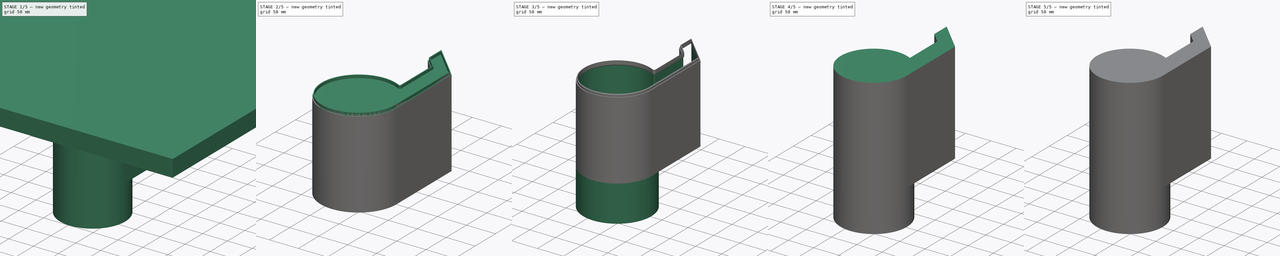
[diagram: build sequence overview — one tinted view per stage of 5, left to right]
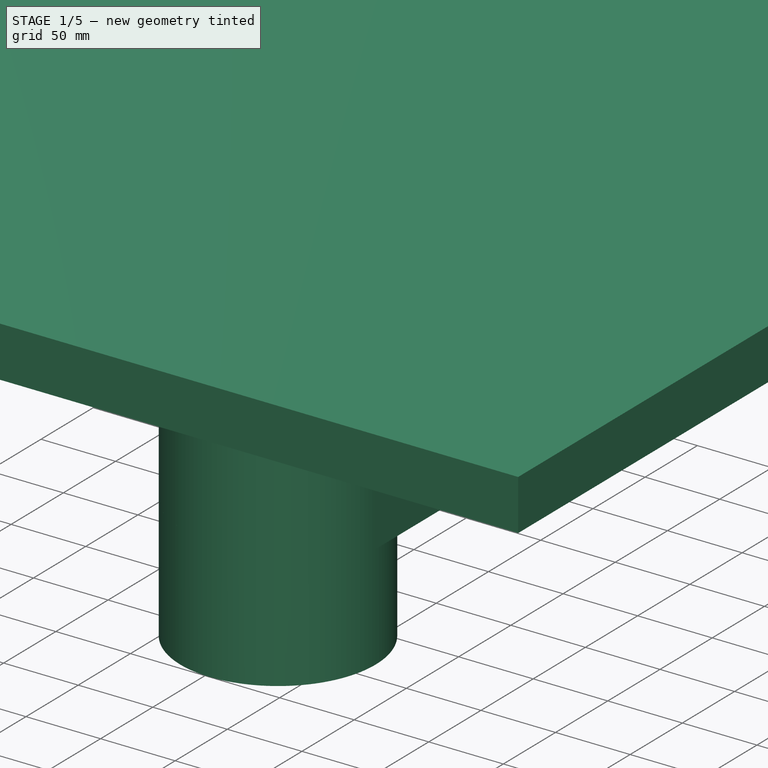
[diagram: stage 1 of 5 — iso view after this stage's code; geometry added in this stage tinted green]
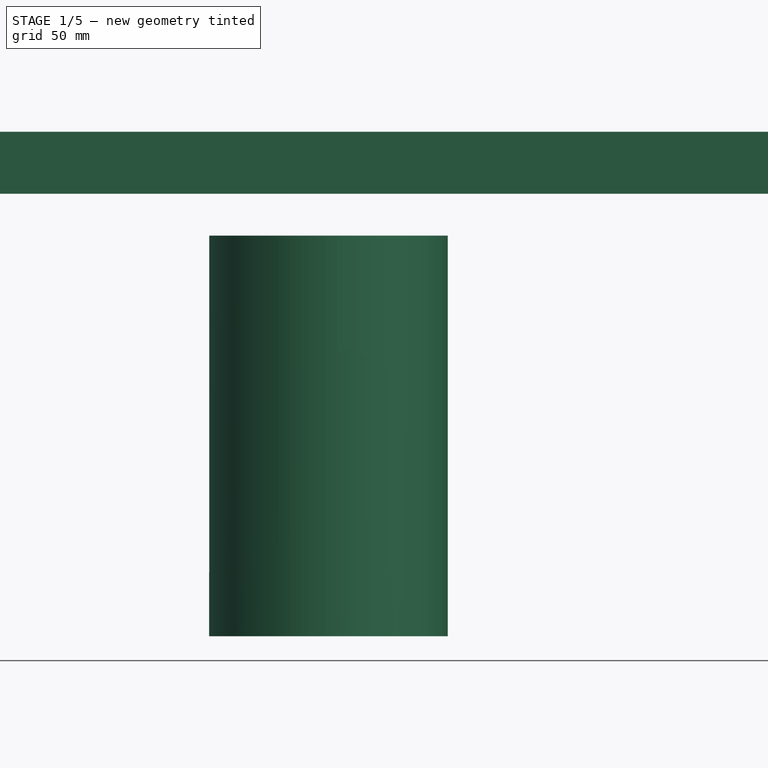
[diagram: stage 1 of 5 — front view after this stage's code; geometry added in this stage tinted green]
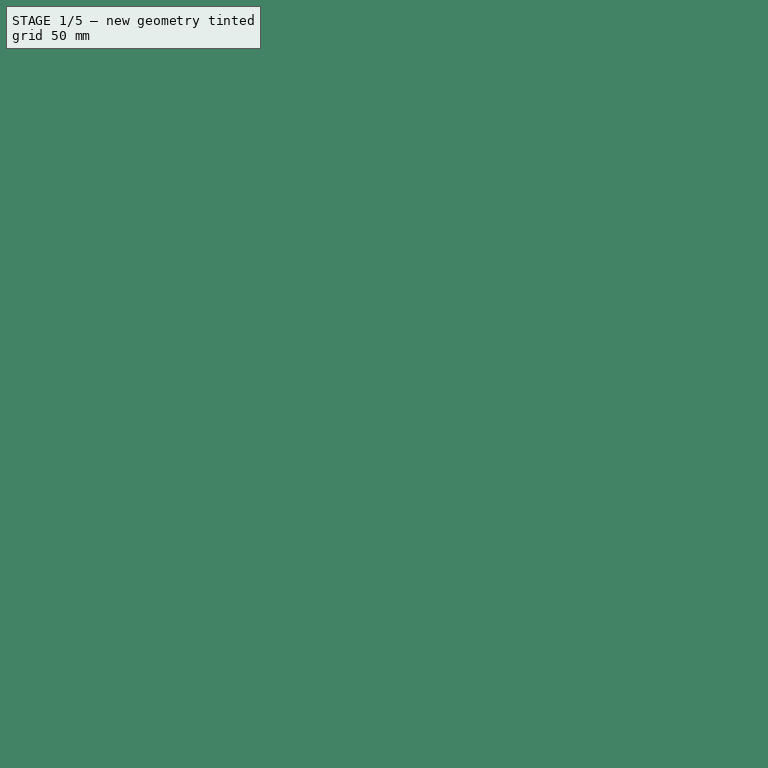
[diagram: stage 1 of 5 — top view after this stage's code; geometry added in this stage tinted green]
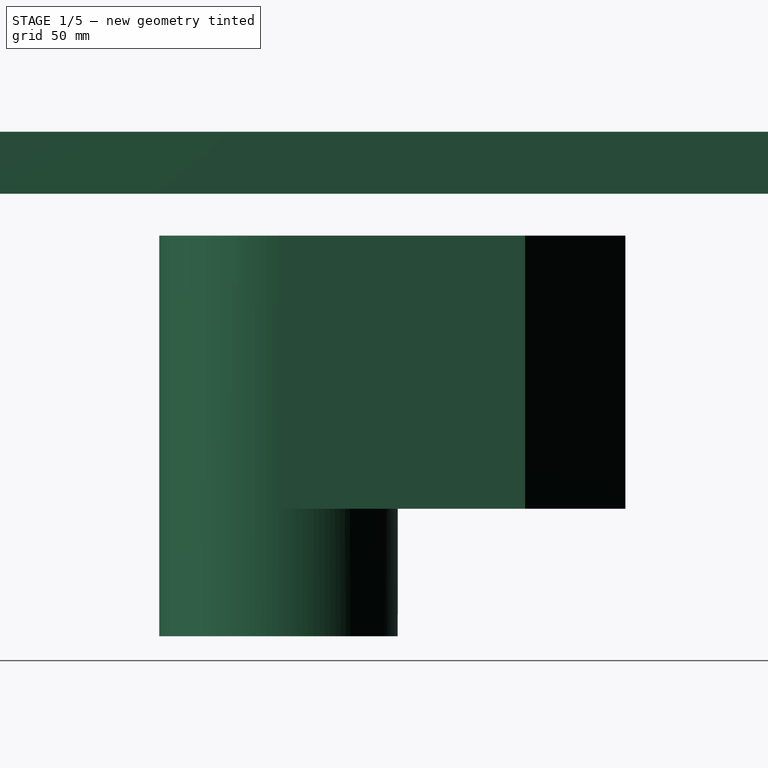
[diagram: stage 1 of 5 — right view after this stage's code; geometry added in this stage tinted green]
FCSTD DOCUMENT  (FreeCAD 1.1R1.1.0)
Label: SimpleWIndowThrough
License: All rights reserved
LicenseURL: http://en.wikipedia.org/wiki/All_rights_reserved
objects: Sketcher::SketchObject×15, PartDesign::Pad×9, App::Point×7, PartDesign::Body×6, PartDesign::Pocket×6, PartDesign::Thickness×5, Part::MultiFuse×2, Part::Cut×2, Part::Fillet×1, PartDesign::Chamfer×1, Part::Box×1, Part::Chamfer×1
note: 106 computed .brp shape members not serialized (recipe doc carries the construction recipe); baked Part::Feature solids carry a one-line shape summary decoded from their .brp

FEATURE [PartDesign::Body] Body003  label="PartLower"
  AllowCompound = false
  Group = -> [Sketch008,Pad004,Thickness002,Sketch009,Pad005,Sketch010,Pocket003,Sketch011,Pocket004]
  Origin = -> Origin008
  Tip = -> Pocket004
FEATURE [App::Point] Origin011  label="Origin013"
  Role = Origin
FEATURE [Sketcher::SketchObject] Sketch012
  ArcFitTolerance = 1e-06
  AttachmentSupport = -> [Origin010]
  ExternalTypes = [0]
  FullyConstrained = false
  MakeInternals = false
  MapMode = 5
  _ExternalGeoVersion = 1
  sketch-geometry (8):
    g0: LineSegment StartX=-1.7444e-12 StartY=-3.304e-12 StartZ=0 EndX=0 EndY=77.5345 EndZ=0
    g1: LineSegment StartX=0 StartY=77.5345 StartZ=0 EndX=-20 EndY=97.5345 EndZ=0
    g2: LineSegment StartX=-20 StartY=97.5345 StartZ=0 EndX=-20 EndY=132.534 EndZ=0
    g3: LineSegment StartX=-20 StartY=132.534 StartZ=0 EndX=35 EndY=77.5345 EndZ=0
    g4: LineSegment StartX=35 StartY=77.5345 StartZ=0 EndX=35 EndY=0 EndZ=0
    g5: ArcOfCircle CenterX=-30.5 CenterY=-57.9655 CenterZ=0 NormalX=0 NormalY=0 NormalZ=1 AngleXU=0 Radius=65.5 StartAngle=1.08643 EndAngle=6.28319
    g6: LineSegment StartX=35 StartY=0 StartZ=0 EndX=35 EndY=-57.9655 EndZ=0
    g7: LineSegment [constr] StartX=-138.105 StartY=7.53449 StartZ=0 EndX=169.661 EndY=7.53449 EndZ=0
  constraints (22):
    c: Coincident(g-1,g0)
    c: PointOnObject(g0,g-2)
    c: Coincident(g0,g1)
    c: Coincident(g1,g2)
    c: Vertical(g2)
    c: Coincident(g2,g3)
    c: Coincident(g3,g4)
    c: PointOnObject(g4,g-1)
    c: Vertical(g4)
    c: Coincident(g5,g0)
    c: Coincident(g6,g4)
    c: Vertical(g6)
    c: DistanceX(g0,g4) = 35
    c: Diameter(g5) = 131
    c: Parallel(g3,g1)
    c: Angle(g1,g0) = 2.35619
    c: Tangent(g6,g5) = 1.5708
    c: Horizontal(g7)
    c: Tangent(g7,g5)
    c: DistanceY(g7,g0) = 70
    c: DistanceX(g1,g0) = 20
    c: DistanceY(g2,g2) = 35
FEATURE [PartDesign::Pad] Pad006
  Direction = (0,0,1)
  Length = 13
  Length2 = 10
  Profile = -> Sketch012
  ReferenceAxis = -> Sketch012 [N_Axis]
  SideType = 0
  Suppressed = false
  Type = 0
  Type2 = 0
FEATURE [PartDesign::Body] Body004
  AllowCompound = false
  Group = -> [Sketch012,Pad006,Thickness003,Chamfer]
  Origin = -> Origin010
  Placement = pos=(0,0,164) rot=(0,0,1;0rad)
  Tip = -> Chamfer
FEATURE [Part::Box] Box  label="Cube"
  AttacherType = Attacher::AttachEngine3D
  Height = 34
  Length = 600
  Placement = pos=(-300,-300,173) rot=(0,0,1;0rad)
  Width = 600
FEATURE [App::Point] Origin013  label="Origin015"
  Role = Origin
FEATURE [Sketcher::SketchObject] Sketch013
  ArcFitTolerance = 1e-06
  AttachmentSupport = -> [Origin012]
  ExternalTypes = [0]
  FullyConstrained = false
  MakeInternals = false
  MapMode = 5
  _ExternalGeoVersion = 1
  sketch-geometry (8):
    g0: LineSegment StartX=7.1e-15 StartY=0 StartZ=0 EndX=0 EndY=77.5345 EndZ=0
    g1: LineSegment StartX=0 StartY=77.5345 StartZ=0 EndX=-20 EndY=97.5345 EndZ=0
    g2: LineSegment StartX=-20 StartY=97.5345 StartZ=0 EndX=-20 EndY=132.534 EndZ=0
    g3: LineSegment StartX=-20 StartY=132.534 StartZ=0 EndX=35 EndY=77.5345 EndZ=0
    g4: LineSegment StartX=35 StartY=77.5345 StartZ=0 EndX=35 EndY=0 EndZ=0
    g5: ArcOfCircle CenterX=-30.5 CenterY=-57.9655 CenterZ=0 NormalX=0 NormalY=0 NormalZ=1 AngleXU=0 Radius=65.5 StartAngle=1.08643 EndAngle=6.28319
    g6: LineSegment StartX=35 StartY=0 StartZ=0 EndX=35 EndY=-57.9655 EndZ=0
    g7: LineSegment [constr] StartX=-138.105 StartY=7.53449 StartZ=0 EndX=169.661 EndY=7.53449 EndZ=0
  constraints (22):
    c: Coincident(g-1,g0)
    c: PointOnObject(g0,g-2)
    c: Coincident(g0,g1)
    c: Coincident(g1,g2)
    c: Vertical(g2)
    c: Coincident(g2,g3)
    c: Coincident(g3,g4)
    c: PointOnObject(g4,g-1)
    c: Vertical(g4)
    c: Coincident(g5,g0)
    c: Coincident(g6,g4)
    c: Vertical(g6)
    c: DistanceX(g0,g4) = 35
    c: Diameter(g5) = 131
    c: Parallel(g3,g1)
    c: Angle(g1,g0) = 2.35619
    c: Tangent(g6,g5) = 1.5708
    c: Horizontal(g7)
    c: Tangent(g7,g5)
    c: DistanceY(g7,g0) = 70
    c: DistanceX(g1,g0) = 20
    c: DistanceY(g2,g2) = 35
FEATURE [PartDesign::Pad] Pad007
  Direction = (0,0,1)
  Length = 150
  Length2 = 10
  Profile = -> Sketch013
  ReferenceAxis = -> Sketch013 [N_Axis]
  SideType = 0
  Suppressed = false
  Type = 0
  Type2 = 0
FEATURE [PartDesign::Thickness] Thickness004
  Base = -> Pad007 [Face9]
  BaseFeature = -> Pad007
  Intersection = false
  Join = 0
  Mode = 0
  Reversed = true
  SupportTransform = false
  Suppressed = false
  Value = 1.5
FEATURE [Sketcher::SketchObject] Sketch014
  ArcFitTolerance = 1e-06
  AttachmentSupport = -> [Thickness004]
  ExternalGeometry = -> [Thickness004]
  ExternalTypes = [0]
  FullyConstrained = true
  MakeInternals = false
  MapMode = 5
  Placement = pos=(0,0,0) rot=(1,0,0;3.14159rad)
  _ExternalGeoVersion = 1
  sketch-geometry (1):
    g0: Circle CenterX=-30.5 CenterY=57.9655 CenterZ=0 NormalX=0 NormalY=0 NormalZ=1 AngleXU=0 Radius=65.5
  constraints (2):
    c: Coincident(g0,g-3)
    c: Diameter(g0) = 131
FEATURE [PartDesign::Pad] Pad008
  BaseFeature = -> Thickness004
  Direction = (0,0,-1)
  Length = 70
  Length2 = 10
  Profile = -> Sketch014
  ReferenceAxis = -> Sketch014 [N_Axis]
  SideType = 0
  Suppressed = false
  Type = 0
  Type2 = 0
FEATURE [Sketcher::SketchObject] Sketch015
  ArcFitTolerance = 1e-06
  AttachmentSupport = -> [Pad008]
  ExternalGeometry = -> [Pad008]
  ExternalTypes = [0]
  FullyConstrained = true
  MakeInternals = false
  MapMode = 5
  Placement = pos=(0,0,-70) rot=(1,0,0;3.14159rad)
  _ExternalGeoVersion = 1
  sketch-geometry (1):
    g0: Circle CenterX=-30.5 CenterY=57.9655 CenterZ=0 NormalX=0 NormalY=0 NormalZ=1 AngleXU=0 Radius=62.5
  constraints (2):
    c: Coincident(g0,g-3)
    c: Diameter(g0) = 125
FEATURE [PartDesign::Pocket] Pocket005
  BaseFeature = -> Pad008
  Direction = (0,0,1)
  Length = 104
  Length2 = 5
  Profile = -> Sketch015
  ReferenceAxis = -> Sketch015 [N_Axis]
  SideType = 0
  Suppressed = false
  Type = 0
  Type2 = 0
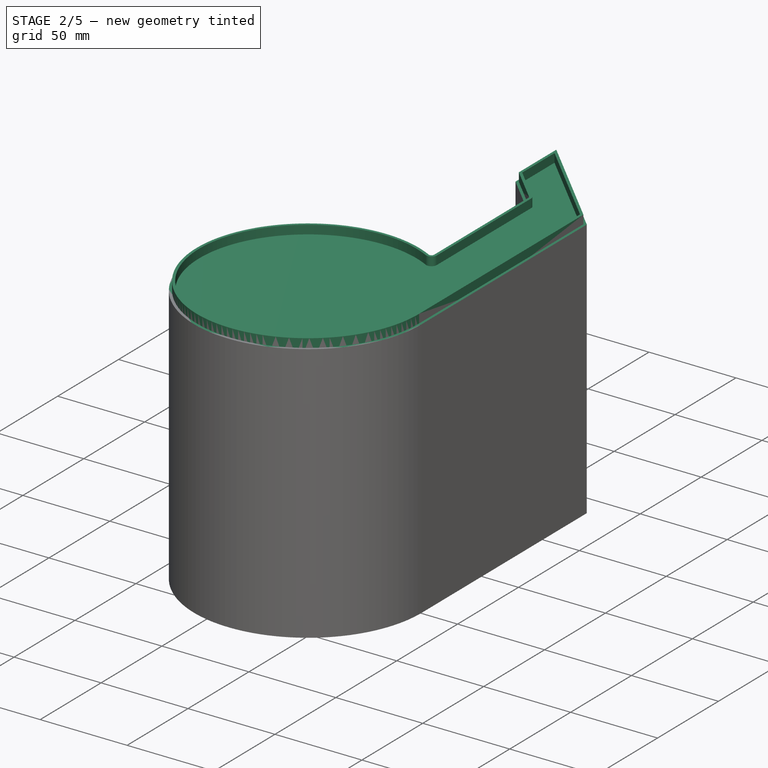
[diagram: stage 2 of 5 — iso view after this stage's code; geometry added in this stage tinted green]
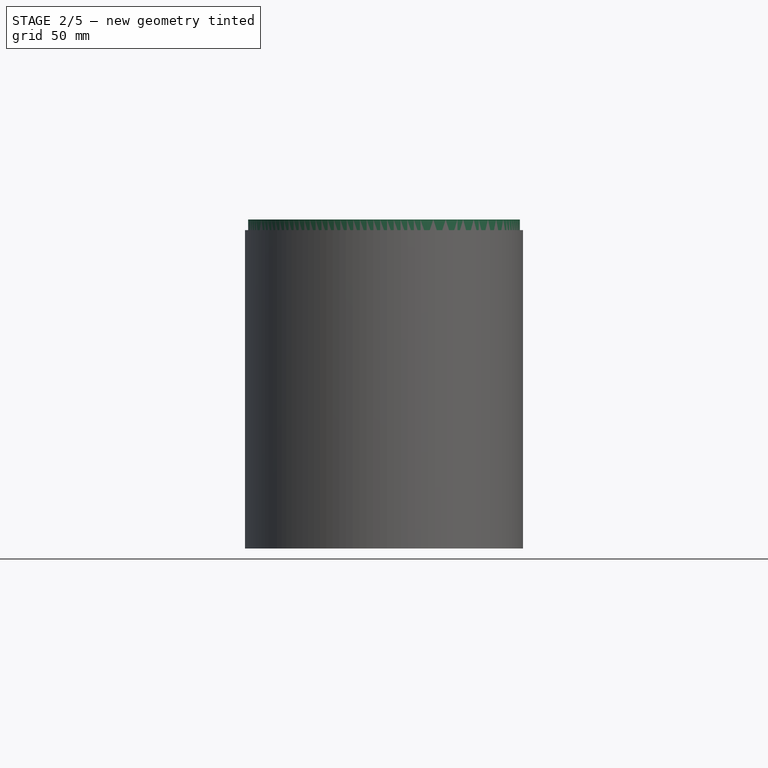
[diagram: stage 2 of 5 — front view after this stage's code; geometry added in this stage tinted green]
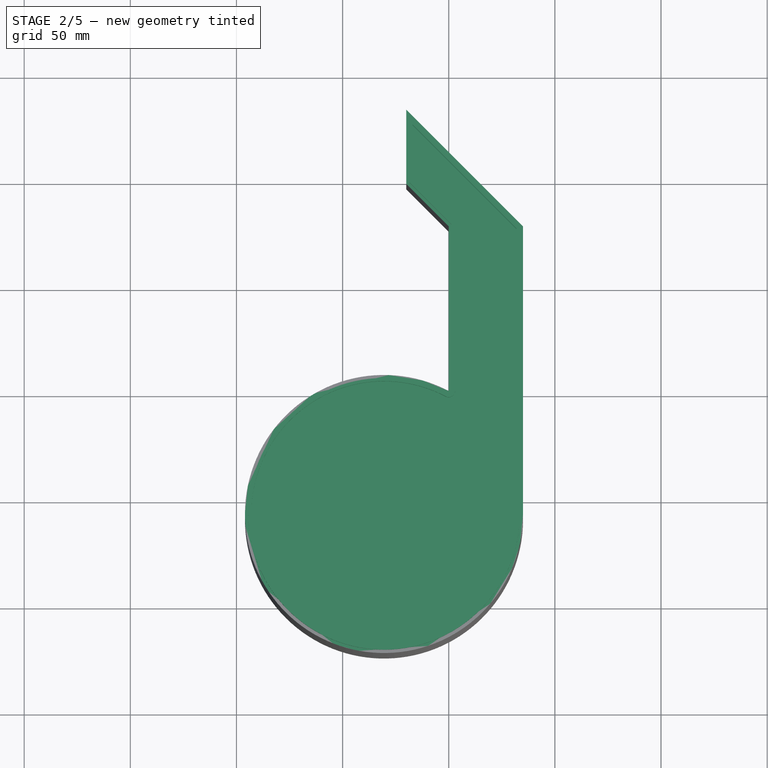
[diagram: stage 2 of 5 — top view after this stage's code; geometry added in this stage tinted green]
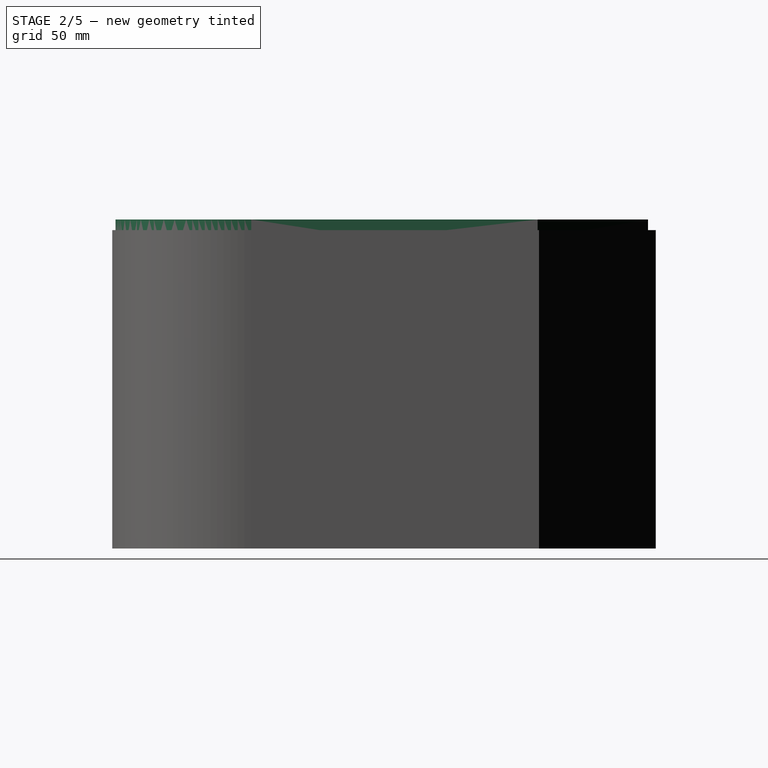
[diagram: stage 2 of 5 — right view after this stage's code; geometry added in this stage tinted green]
FEATURE [PartDesign::Body] Body002  label="PartUpper"
  AllowCompound = false
  Group = -> [Sketch006,Pad003,Thickness001,Sketch007,Pocket002]
  Origin = -> Origin006
  Placement = pos=(0,0,164) rot=(0,0,1;0rad)
  Tip = -> Pocket002
FEATURE [App::Point] Origin009  label="Origin011"
  Role = Origin
FEATURE [Sketcher::SketchObject] Sketch008
  ArcFitTolerance = 1e-06
  AttachmentSupport = -> [Origin008]
  ExternalTypes = [0]
  FullyConstrained = false
  MakeInternals = false
  MapMode = 5
  _ExternalGeoVersion = 1
  sketch-geometry (8):
    g0: LineSegment StartX=7.1e-15 StartY=0 StartZ=0 EndX=0 EndY=77.5345 EndZ=0
    g1: LineSegment StartX=0 StartY=77.5345 StartZ=0 EndX=-20 EndY=97.5345 EndZ=0
    g2: LineSegment StartX=-20 StartY=97.5345 StartZ=0 EndX=-20 EndY=132.534 EndZ=0
    g3: LineSegment StartX=-20 StartY=132.534 StartZ=0 EndX=35 EndY=77.5345 EndZ=0
    g4: LineSegment StartX=35 StartY=77.5345 StartZ=0 EndX=35 EndY=0 EndZ=0
    g5: ArcOfCircle CenterX=-30.5 CenterY=-57.9655 CenterZ=0 NormalX=0 NormalY=0 NormalZ=1 AngleXU=0 Radius=65.5 StartAngle=1.08643 EndAngle=6.28319
    g6: LineSegment StartX=35 StartY=0 StartZ=0 EndX=35 EndY=-57.9655 EndZ=0
    g7: LineSegment [constr] StartX=-138.105 StartY=7.53449 StartZ=0 EndX=169.661 EndY=7.53449 EndZ=0
  constraints (22):
    c: Coincident(g-1,g0)
    c: PointOnObject(g0,g-2)
    c: Coincident(g0,g1)
    c: Coincident(g1,g2)
    c: Vertical(g2)
    c: Coincident(g2,g3)
    c: Coincident(g3,g4)
    c: PointOnObject(g4,g-1)
    c: Vertical(g4)
    c: Coincident(g5,g0)
    c: Coincident(g6,g4)
    c: Vertical(g6)
    c: DistanceX(g0,g4) = 35
    c: Diameter(g5) = 131
    c: Parallel(g3,g1)
    c: Angle(g1,g0) = 2.35619
    c: Tangent(g6,g5) = 1.5708
    c: Horizontal(g7)
    c: Tangent(g7,g5)
    c: DistanceY(g7,g0) = 70
    c: DistanceX(g1,g0) = 20
    c: DistanceY(g2,g2) = 35
FEATURE [PartDesign::Pad] Pad004
  Direction = (0,0,1)
  Length = 150
  Length2 = 10
  Profile = -> Sketch008
  ReferenceAxis = -> Sketch008 [N_Axis]
  SideType = 0
  Suppressed = false
  Type = 0
  Type2 = 0
FEATURE [PartDesign::Thickness] Thickness003
  Base = -> Pad006 [Face8]
  BaseFeature = -> Pad006
  Intersection = false
  Join = 0
  Mode = 0
  Reversed = true
  SupportTransform = false
  Suppressed = false
  Value = 3
FEATURE [PartDesign::Chamfer] Chamfer
  Angle = 45
  Base = -> Thickness003 [Edge22,Edge30,Edge29,Edge28,Edge27,Edge26,Vertex19,Edge25,Edge24,Edge23]
  BaseFeature = -> Thickness003
  ChamferType = 0
  FlipDirection = false
  Size = 1.5
  Size2 = 1
  SupportTransform = false
  Suppressed = false
  UseAllEdges = false
FEATURE [Part::Cut] Cut
  Base = -> Body004
  Placement = pos=(0,0,-18) rot=(0,0,1;0rad)
  Tool = -> Box
FEATURE [PartDesign::Body] Body005  label="PartLower001"
  AllowCompound = false
  Group = -> [Sketch013,Pad007,Thickness004,Sketch014,Pad008,Sketch015,Pocket005]
  Origin = -> Origin012
  Placement = pos=(0,0,6) rot=(0,0,1;0rad)
  Tip = -> Pocket005
FEATURE [Part::Cut] Cut001
  Base = -> Cut
  Tool = -> Body005
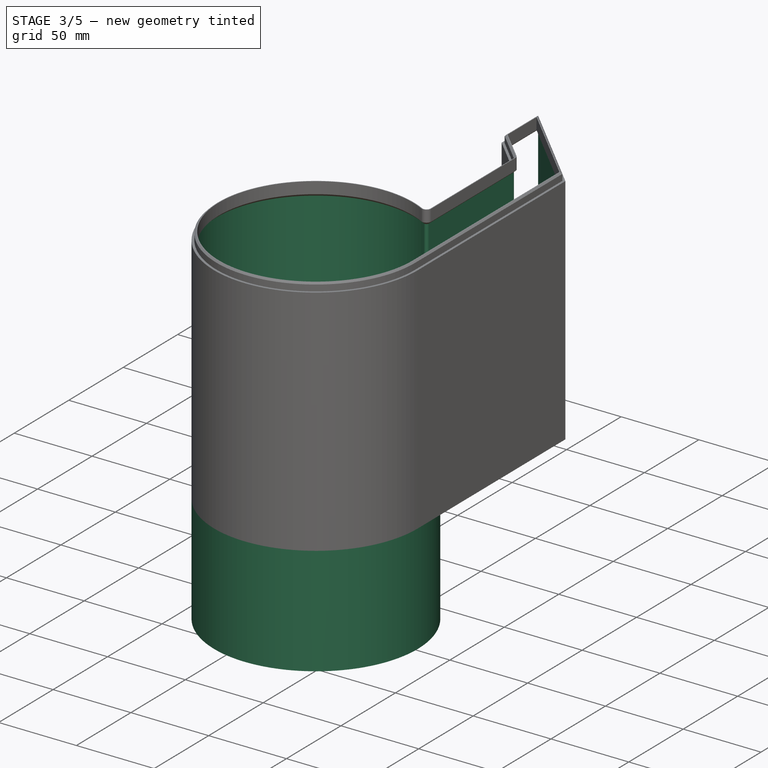
[diagram: stage 3 of 5 — iso view after this stage's code; geometry added in this stage tinted green]
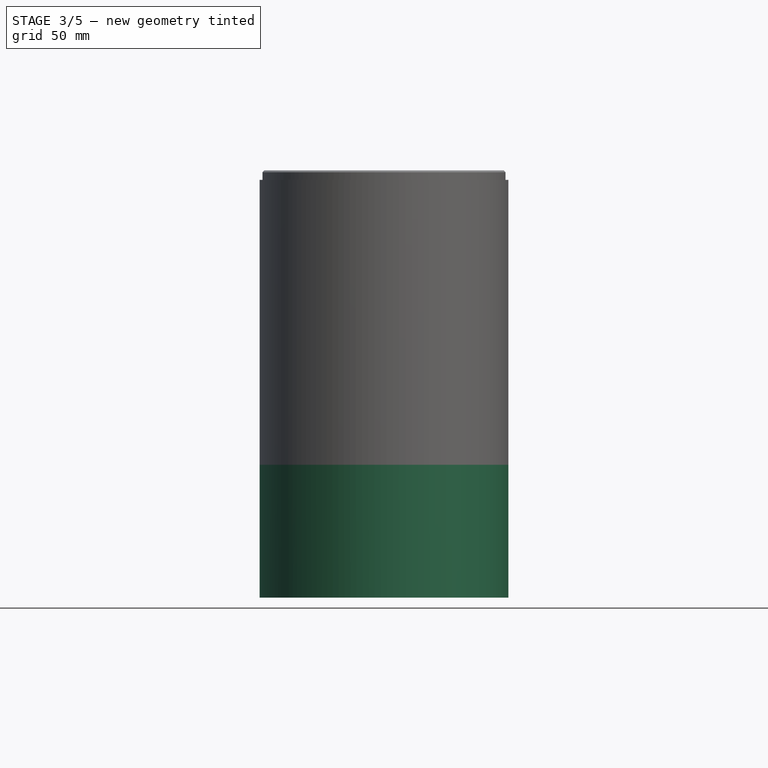
[diagram: stage 3 of 5 — front view after this stage's code; geometry added in this stage tinted green]
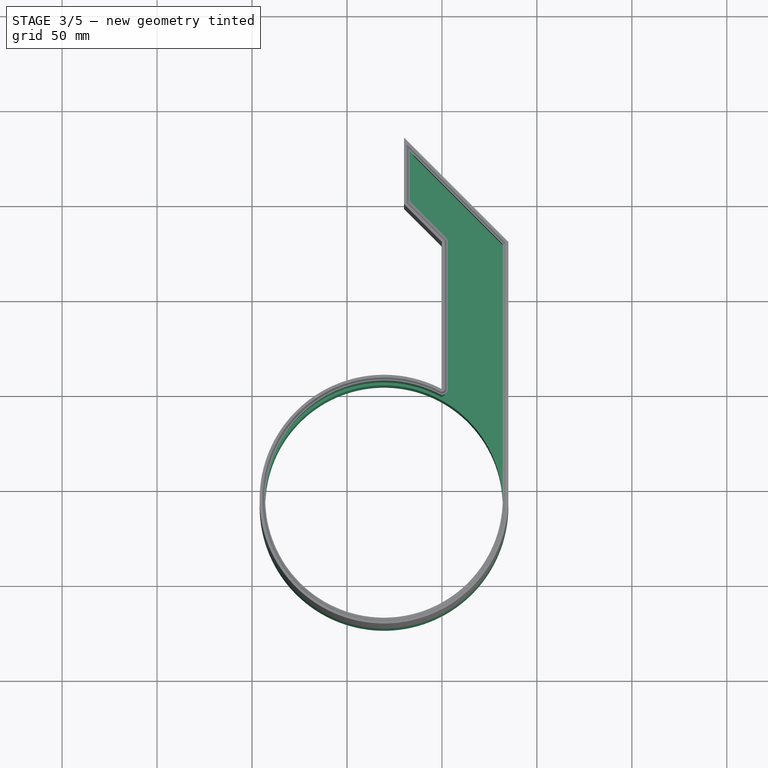
[diagram: stage 3 of 5 — top view after this stage's code; geometry added in this stage tinted green]
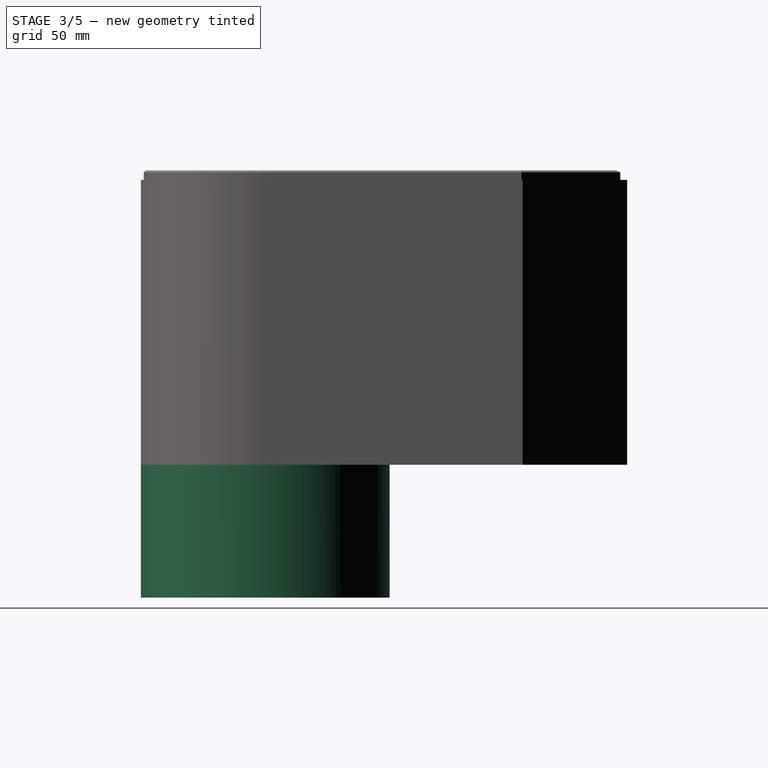
[diagram: stage 3 of 5 — right view after this stage's code; geometry added in this stage tinted green]
FEATURE [PartDesign::Thickness] Thickness002
  Base = -> Pad004 [Face9]
  BaseFeature = -> Pad004
  Intersection = false
  Join = 0
  Mode = 0
  Reversed = true
  SupportTransform = false
  Suppressed = false
  Value = 1.5
FEATURE [Sketcher::SketchObject] Sketch009
  ArcFitTolerance = 1e-06
  AttachmentSupport = -> [Thickness002]
  ExternalGeometry = -> [Thickness002]
  ExternalTypes = [0]
  FullyConstrained = true
  MakeInternals = false
  MapMode = 5
  Placement = pos=(0,0,0) rot=(1,0,0;3.14159rad)
  _ExternalGeoVersion = 1
  sketch-geometry (1):
    g0: Circle CenterX=-30.5 CenterY=57.9655 CenterZ=0 NormalX=0 NormalY=0 NormalZ=1 AngleXU=0 Radius=65.5
  constraints (2):
    c: Coincident(g0,g-3)
    c: Diameter(g0) = 131
FEATURE [PartDesign::Pad] Pad005
  BaseFeature = -> Thickness002
  Direction = (0,0,-1)
  Length = 70
  Length2 = 10
  Profile = -> Sketch009
  ReferenceAxis = -> Sketch009 [N_Axis]
  SideType = 0
  Suppressed = false
  Type = 0
  Type2 = 0
FEATURE [Sketcher::SketchObject] Sketch010
  ArcFitTolerance = 1e-06
  AttachmentSupport = -> [Pad005]
  ExternalGeometry = -> [Pad005]
  ExternalTypes = [0]
  FullyConstrained = true
  MakeInternals = false
  MapMode = 5
  Placement = pos=(0,0,-70) rot=(1,0,0;3.14159rad)
  _ExternalGeoVersion = 1
  sketch-geometry (1):
    g0: Circle CenterX=-30.5 CenterY=57.9655 CenterZ=0 NormalX=0 NormalY=0 NormalZ=1 AngleXU=0 Radius=62.5
  constraints (2):
    c: Coincident(g0,g-3)
    c: Diameter(g0) = 125
FEATURE [PartDesign::Pocket] Pocket003
  BaseFeature = -> Pad005
  Direction = (0,0,1)
  Length = 104
  Length2 = 5
  Profile = -> Sketch010
  ReferenceAxis = -> Sketch010 [N_Axis]
  SideType = 0
  Suppressed = false
  Type = 0
  Type2 = 0
FEATURE [Sketcher::SketchObject] Sketch011
  ArcFitTolerance = 1e-06
  AttachmentSupport = -> [Pocket003]
  ExternalGeometry = -> [Pocket003]
  ExternalTypes = [0]
  FullyConstrained = true
  MakeInternals = false
  MapMode = 5
  Placement = pos=(-20,0,0) rot=(0.57735,-0.57735,-0.57735;2.0944rad)
  _ExternalGeoVersion = 1
  sketch-geometry (4):
    g0: LineSegment StartX=-131.034 StartY=1.5 StartZ=0 EndX=-99.0345 EndY=1.5 EndZ=0
    g1: LineSegment StartX=-99.0345 StartY=1.5 StartZ=0 EndX=-99.0345 EndY=148.5 EndZ=0
    g2: LineSegment StartX=-99.0345 StartY=148.5 StartZ=0 EndX=-131.034 EndY=148.5 EndZ=0
    g3: LineSegment StartX=-131.034 StartY=148.5 StartZ=0 EndX=-131.034 EndY=1.5 EndZ=0
  constraints (12):
    c: Coincident(g0,g1)
    c: Coincident(g1,g2)
    c: Coincident(g2,g3)
    c: Coincident(g3,g0)
    c: Horizontal(g0)
    c: Horizontal(g2)
    c: Vertical(g1)
    c: Vertical(g3)
    c: DistanceX(g-3,g2) = 1.5
    c: DistanceY(g2,g-3) = 1.5
    c: DistanceY(g-3,g0) = 1.5
    c: DistanceX(g0,g0) = 32
FEATURE [PartDesign::Pocket] Pocket004
  BaseFeature = -> Pocket003
  Direction = (1,-1,0)
  Length = 5
  Length2 = 5
  Profile = -> Sketch011
  ReferenceAxis = -> Sketch011 [N_Axis]
  SideType = 0
  Suppressed = false
  Type = 0
  Type2 = 0
  UseCustomVector = true
FEATURE [Part::MultiFuse] Fusion001
  Shapes = -> [Body003,Cut001]
FEATURE [Part::Chamfer] Chamfer001  label="PartLower002"
  Base = -> Fusion001
  EdgeLinks = -> Fusion001 [Edge39,Edge41,Edge44,Edge46,Edge49,Edge52,Edge54,Edge55]
  Edges = 8 edges r=1: [Edge39,Edge41,Edge44,Edge46,Edge49,Edge52,Edge54,Edge55]
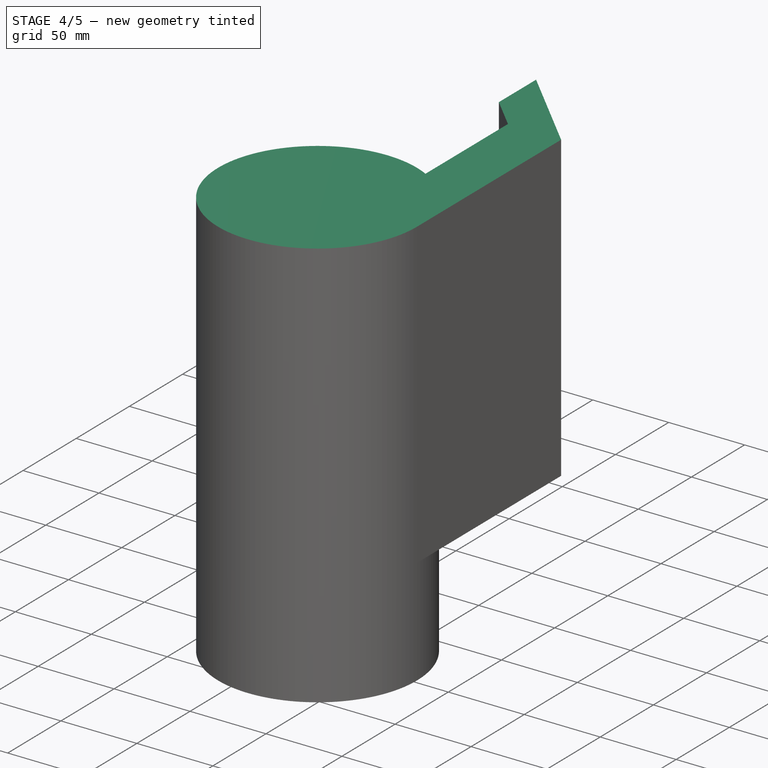
[diagram: stage 4 of 5 — iso view after this stage's code; geometry added in this stage tinted green]
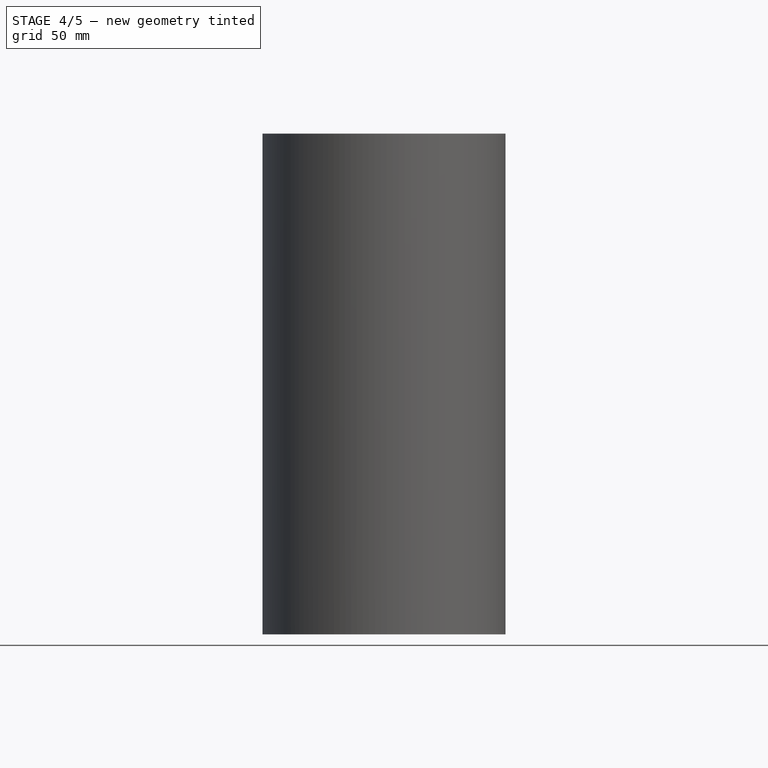
[diagram: stage 4 of 5 — front view after this stage's code; geometry added in this stage tinted green]
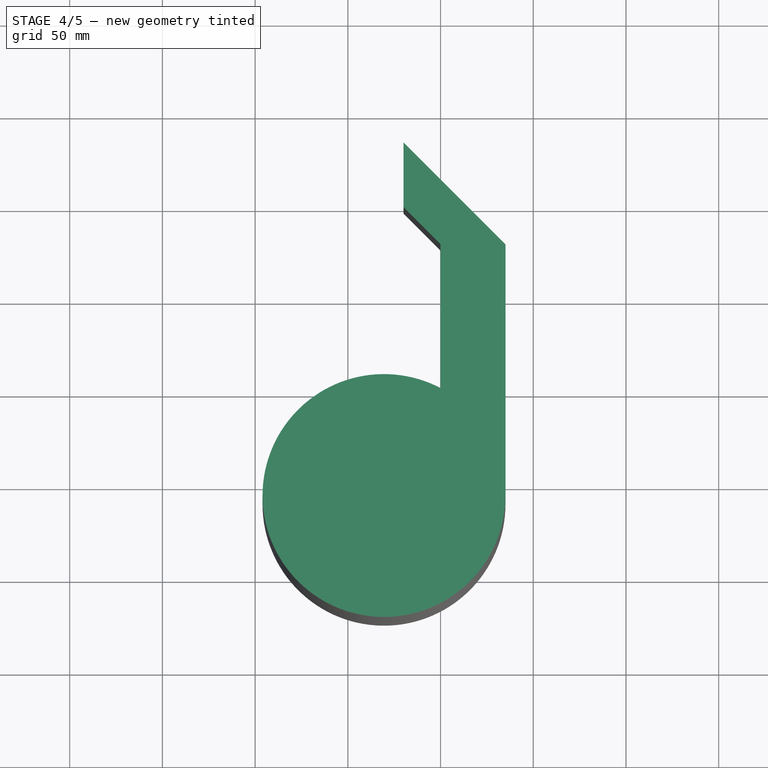
[diagram: stage 4 of 5 — top view after this stage's code; geometry added in this stage tinted green]
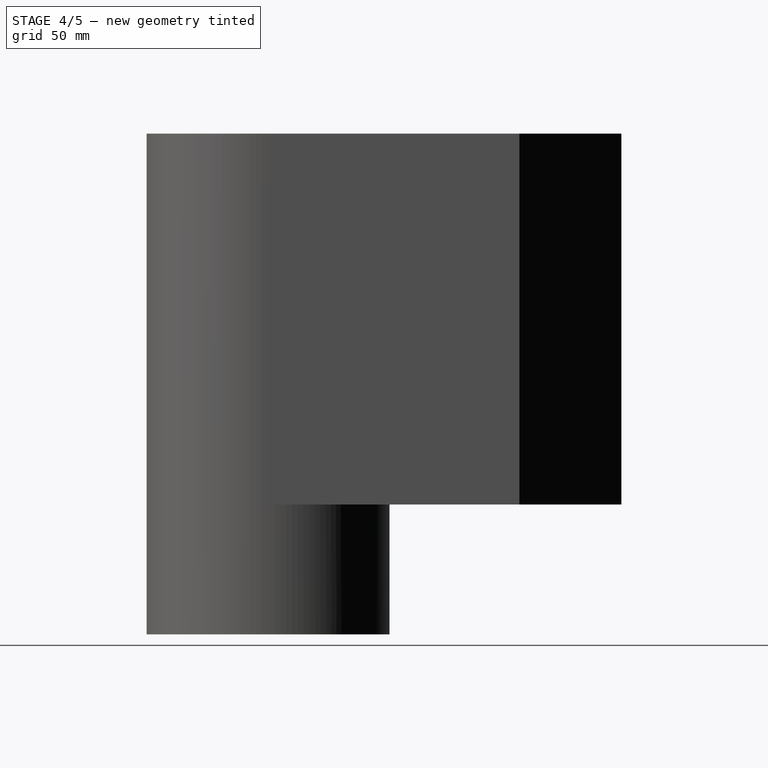
[diagram: stage 4 of 5 — right view after this stage's code; geometry added in this stage tinted green]
FEATURE [App::Point] Origin001
  Role = Origin
FEATURE [Sketcher::SketchObject] Sketch
  ArcFitTolerance = 1e-06
  AttachmentSupport = -> [Origin]
  ExternalTypes = [0]
  FullyConstrained = false
  MakeInternals = false
  MapMode = 5
  _ExternalGeoVersion = 1
  sketch-geometry (8):
    g0: LineSegment StartX=7.1e-15 StartY=0 StartZ=0 EndX=0 EndY=77.5345 EndZ=0
    g1: LineSegment StartX=0 StartY=77.5345 StartZ=0 EndX=-20 EndY=97.5345 EndZ=0
    g2: LineSegment StartX=-20 StartY=97.5345 StartZ=0 EndX=-20 EndY=132.534 EndZ=0
    g3: LineSegment StartX=-20 StartY=132.534 StartZ=0 EndX=35 EndY=77.5345 EndZ=0
    g4: LineSegment StartX=35 StartY=77.5345 StartZ=0 EndX=35 EndY=0 EndZ=0
    g5: ArcOfCircle CenterX=-30.5 CenterY=-57.9655 CenterZ=0 NormalX=0 NormalY=0 NormalZ=1 AngleXU=0 Radius=65.5 StartAngle=1.08643 EndAngle=6.28319
    g6: LineSegment StartX=35 StartY=0 StartZ=0 EndX=35 EndY=-57.9655 EndZ=0
    g7: LineSegment [constr] StartX=-138.105 StartY=7.53449 StartZ=0 EndX=169.661 EndY=7.53449 EndZ=0
  constraints (22):
    c: Coincident(g-1,g0)
    c: PointOnObject(g0,g-2)
    c: Coincident(g0,g1)
    c: Coincident(g1,g2)
    c: Vertical(g2)
    c: Coincident(g2,g3)
    c: Coincident(g3,g4)
    c: PointOnObject(g4,g-1)
    c: Vertical(g4)
    c: Coincident(g5,g0)
    c: Coincident(g6,g4)
    c: Vertical(g6)
    c: DistanceX(g0,g4) = 35
    c: Diameter(g5) = 131
    c: Parallel(g3,g1)
    c: Angle(g1,g0) = 2.35619
    c: Tangent(g6,g5) = 1.5708
    c: Horizontal(g7)
    c: Tangent(g7,g5)
    c: DistanceY(g7,g0) = 70
    c: DistanceX(g1,g0) = 20
    c: DistanceY(g2,g2) = 35
FEATURE [PartDesign::Pad] Pad
  Direction = (0,0,1)
  Length = 150
  Length2 = 10
  Profile = -> Sketch
  ReferenceAxis = -> Sketch [N_Axis]
  SideType = 0
  Suppressed = false
  Type = 0
  Type2 = 0
FEATURE [PartDesign::Thickness] Thickness
  Base = -> Pad [Face9]
  BaseFeature = -> Pad
  Intersection = false
  Join = 0
  Mode = 0
  Reversed = true
  SupportTransform = false
  Suppressed = false
  Value = 1.5
FEATURE [App::Point] Origin007  label="Origin008"
  Role = Origin
FEATURE [Sketcher::SketchObject] Sketch006
  ArcFitTolerance = 1e-06
  AttachmentSupport = -> [Origin006]
  ExternalTypes = [0]
  FullyConstrained = false
  MakeInternals = false
  MapMode = 5
  _ExternalGeoVersion = 1
  sketch-geometry (8):
    g0: LineSegment StartX=0 StartY=0 StartZ=0 EndX=0 EndY=77.5345 EndZ=0
    g1: LineSegment StartX=0 StartY=77.5345 StartZ=0 EndX=-20 EndY=97.5345 EndZ=0
    g2: LineSegment StartX=-20 StartY=97.5345 StartZ=0 EndX=-20 EndY=132.534 EndZ=0
    g3: LineSegment StartX=-20 StartY=132.534 StartZ=0 EndX=35 EndY=77.5345 EndZ=0
    g4: LineSegment StartX=35 StartY=77.5345 StartZ=0 EndX=35 EndY=0 EndZ=0
    g5: ArcOfCircle CenterX=-30.5 CenterY=-57.9655 CenterZ=0 NormalX=0 NormalY=0 NormalZ=1 AngleXU=0 Radius=65.5 StartAngle=1.08643 EndAngle=6.28319
    g6: LineSegment StartX=35 StartY=0 StartZ=0 EndX=35 EndY=-57.9655 EndZ=0
    g7: LineSegment [constr] StartX=-138.105 StartY=7.53449 StartZ=0 EndX=169.661 EndY=7.53449 EndZ=0
  constraints (22):
    c: Coincident(g-1,g0)
    c: PointOnObject(g0,g-2)
    c: Coincident(g0,g1)
    c: Coincident(g1,g2)
    c: Vertical(g2)
    c: Coincident(g2,g3)
    c: Coincident(g3,g4)
    c: PointOnObject(g4,g-1)
    c: Vertical(g4)
    c: Coincident(g5,g0)
    c: Coincident(g6,g4)
    c: Vertical(g6)
    c: DistanceX(g0,g4) = 35
    c: Diameter(g5) = 131
    c: Parallel(g3,g1)
    c: Angle(g1,g0) = 2.35619
    c: Tangent(g6,g5) = 1.5708
    c: Horizontal(g7)
    c: Tangent(g7,g5)
    c: DistanceY(g7,g0) = 70
    c: DistanceX(g1,g0) = 20
    c: DistanceY(g2,g2) = 35
FEATURE [PartDesign::Pad] Pad003
  Direction = (0,0,1)
  Length = 200
  Length2 = 10
  Profile = -> Sketch006
  ReferenceAxis = -> Sketch006 [N_Axis]
  SideType = 0
  Suppressed = false
  Type = 0
  Type2 = 0
FEATURE [PartDesign::Thickness] Thickness001
  Base = -> Pad003 [Face8]
  BaseFeature = -> Pad003
  Intersection = false
  Join = 0
  Mode = 0
  Reversed = true
  SupportTransform = false
  Suppressed = false
  Value = 1.5
FEATURE [Sketcher::SketchObject] Sketch007
  ArcFitTolerance = 1e-06
  AttachmentSupport = -> [Thickness001]
  ExternalGeometry = -> [Thickness001]
  ExternalTypes = [0,0]
  FullyConstrained = true
  MakeInternals = false
  MapMode = 5
  Placement = pos=(-20,0,0) rot=(0.57735,-0.57735,-0.57735;2.0944rad)
  _ExternalGeoVersion = 1
  sketch-geometry (4):
    g0: LineSegment StartX=-131.034 StartY=198.5 StartZ=0 EndX=-131.034 EndY=1.5 EndZ=0
    g1: LineSegment StartX=-131.034 StartY=1.5 StartZ=0 EndX=-99.0345 EndY=1.5 EndZ=0
    g2: LineSegment StartX=-99.0345 StartY=1.5 StartZ=0 EndX=-99.0345 EndY=198.5 EndZ=0
    g3: LineSegment StartX=-99.0345 StartY=198.5 StartZ=0 EndX=-131.034 EndY=198.5 EndZ=0
  constraints (12):
    c: Coincident(g0,g1)
    c: Coincident(g1,g2)
    c: Coincident(g2,g3)
    c: Coincident(g3,g0)
    c: Vertical(g0)
    c: Vertical(g2)
    c: Horizontal(g1)
    c: Horizontal(g3)
    c: DistanceX(g-3,g0) = 1.5
    c: DistanceX(g1,g-4) = 1.5
    c: DistanceY(g-3,g0) = 1.5
    c: DistanceY(g0,g-3) = 1.5
FEATURE [PartDesign::Pocket] Pocket002
  BaseFeature = -> Thickness001
  Direction = (1,-1,0)
  Length = 5
  Length2 = 5
  Profile = -> Sketch007
  ReferenceAxis = -> Sketch007 [N_Axis]
  SideType = 0
  Suppressed = false
  Type = 0
  Type2 = 0
  UseCustomVector = true
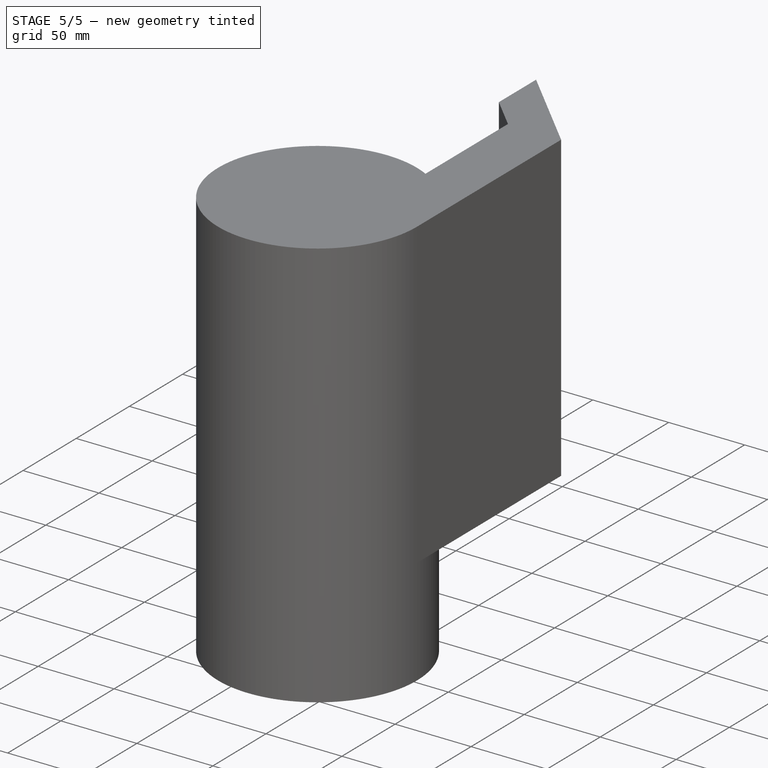
[diagram: stage 5 of 5 — iso view after this stage's code; geometry added in this stage tinted green]
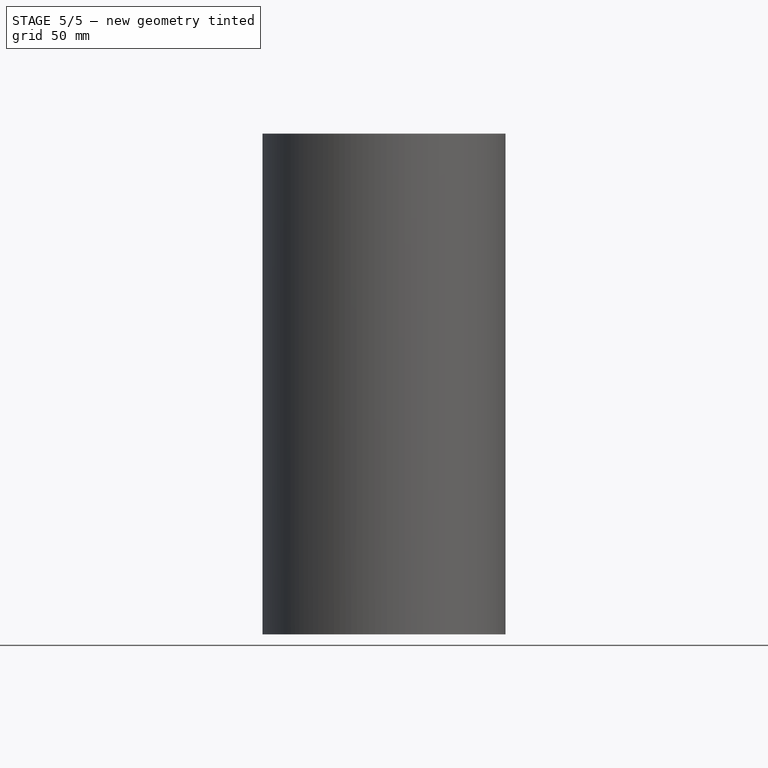
[diagram: stage 5 of 5 — front view after this stage's code; geometry added in this stage tinted green]
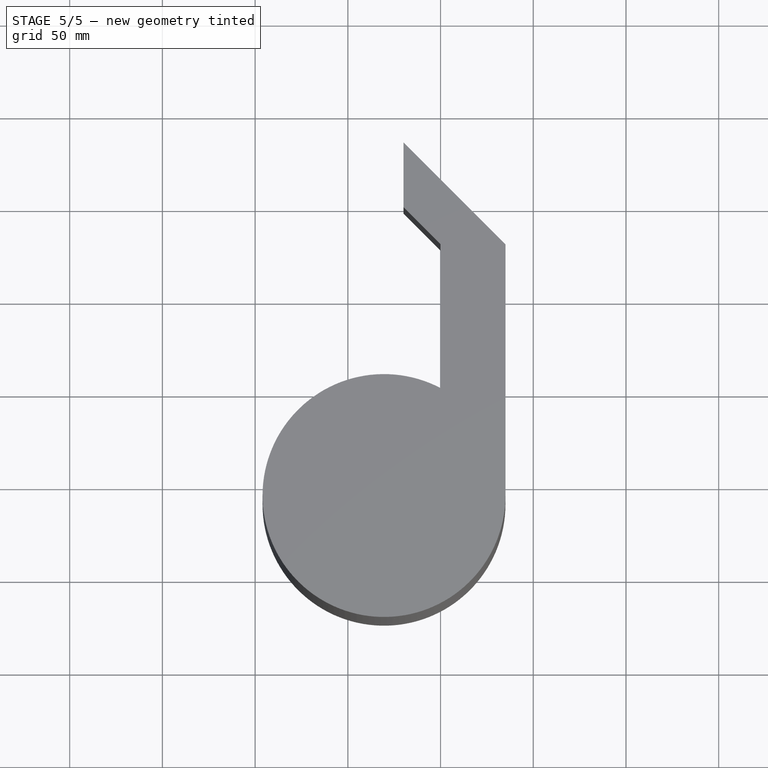
[diagram: stage 5 of 5 — top view after this stage's code; geometry added in this stage tinted green]
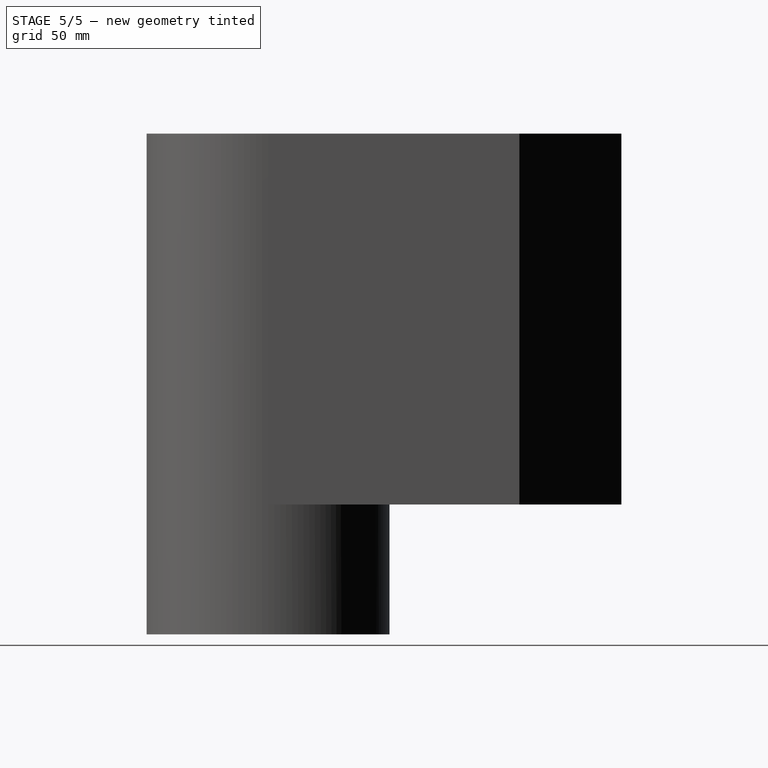
[diagram: stage 5 of 5 — right view after this stage's code; geometry added in this stage tinted green]
FEATURE [App::Point] Origin003
  Role = Origin
FEATURE [App::Point] Origin005  label="Origin006"
  Role = Origin
FEATURE [Sketcher::SketchObject] Sketch002
  ArcFitTolerance = 1e-06
  AttachmentSupport = -> [Origin002]
  ExternalTypes = [0]
  FullyConstrained = false
  MakeInternals = false
  MapMode = 5
  _ExternalGeoVersion = 1
  sketch-geometry (8):
    g0: LineSegment StartX=3.6e-15 StartY=0 StartZ=0 EndX=0 EndY=77.5345 EndZ=0
    g1: LineSegment StartX=0 StartY=77.5345 StartZ=0 EndX=-20 EndY=97.5345 EndZ=0
    g2: LineSegment StartX=-20 StartY=97.5345 StartZ=0 EndX=-20 EndY=132.534 EndZ=0
    g3: LineSegment StartX=-20 StartY=132.534 StartZ=0 EndX=35 EndY=77.5345 EndZ=0
    g4: LineSegment StartX=35 StartY=77.5345 StartZ=0 EndX=35 EndY=0 EndZ=0
    g5: ArcOfCircle CenterX=-30.5 CenterY=-57.9655 CenterZ=0 NormalX=0 NormalY=0 NormalZ=1 AngleXU=0 Radius=65.5 StartAngle=1.08643 EndAngle=6.28319
    g6: LineSegment StartX=35 StartY=0 StartZ=0 EndX=35 EndY=-57.9655 EndZ=0
    g7: LineSegment [constr] StartX=-138.105 StartY=7.53449 StartZ=0 EndX=169.661 EndY=7.53449 EndZ=0
  constraints (22):
    c: Coincident(g-1,g0)
    c: PointOnObject(g0,g-2)
    c: Coincident(g0,g1)
    c: Coincident(g1,g2)
    c: Vertical(g2)
    c: Coincident(g2,g3)
    c: Coincident(g3,g4)
    c: PointOnObject(g4,g-1)
    c: Vertical(g4)
    c: Coincident(g5,g0)
    c: Coincident(g6,g4)
    c: Vertical(g6)
    c: DistanceX(g0,g4) = 35
    c: Diameter(g5) = 131
    c: Parallel(g3,g1)
    c: Angle(g1,g0) = 2.35619
    c: Tangent(g6,g5) = 1.5708
    c: Horizontal(g7)
    c: Tangent(g7,g5)
    c: DistanceY(g7,g0) = 70
    c: DistanceX(g1,g0) = 20
    c: DistanceY(g2,g2) = 35
FEATURE [PartDesign::Pad] Pad001
  Direction = (0,0,1)
  Length = 1.5
  Length2 = 10
  Profile = -> Sketch002
  ReferenceAxis = -> Sketch002 [N_Axis]
  SideType = 0
  Suppressed = false
  Type = 0
  Type2 = 0
FEATURE [PartDesign::Body] Body001
  AllowCompound = false
  Group = -> [Sketch002,Pad001]
  Origin = -> Origin002
  Placement = pos=(0,0,148.5) rot=(0,0,1;0rad)
  Tip = -> Pad001
FEATURE [Sketcher::SketchObject] Sketch003
  ArcFitTolerance = 1e-06
  AttachmentSupport = -> [Thickness]
  ExternalGeometry = -> [Thickness]
  ExternalTypes = [0]
  FullyConstrained = true
  MakeInternals = false
  MapMode = 5
  Placement = pos=(0,0,0) rot=(1,0,0;3.14159rad)
  _ExternalGeoVersion = 1
  sketch-geometry (1):
    g0: Circle CenterX=-30.5 CenterY=57.9655 CenterZ=0 NormalX=0 NormalY=0 NormalZ=1 AngleXU=0 Radius=65.5
  constraints (2):
    c: Coincident(g0,g-3)
    c: Diameter(g0) = 131
FEATURE [PartDesign::Pad] Pad002
  BaseFeature = -> Thickness
  Direction = (0,0,-1)
  Length = 70
  Length2 = 10
  Profile = -> Sketch003
  ReferenceAxis = -> Sketch003 [N_Axis]
  SideType = 0
  Suppressed = false
  Type = 0
  Type2 = 0
FEATURE [Sketcher::SketchObject] Sketch004
  ArcFitTolerance = 1e-06
  AttachmentSupport = -> [Pad002]
  ExternalGeometry = -> [Pad002]
  ExternalTypes = [0]
  FullyConstrained = true
  MakeInternals = false
  MapMode = 5
  Placement = pos=(0,0,-70) rot=(1,0,0;3.14159rad)
  _ExternalGeoVersion = 1
  sketch-geometry (1):
    g0: Circle CenterX=-30.5 CenterY=57.9655 CenterZ=0 NormalX=0 NormalY=0 NormalZ=1 AngleXU=0 Radius=62.5
  constraints (2):
    c: Coincident(g0,g-3)
    c: Diameter(g0) = 125
FEATURE [PartDesign::Pocket] Pocket
  BaseFeature = -> Pad002
  Direction = (0,0,1)
  Length = 104
  Length2 = 5
  Profile = -> Sketch004
  ReferenceAxis = -> Sketch004 [N_Axis]
  SideType = 0
  Suppressed = false
  Type = 0
  Type2 = 0
FEATURE [Sketcher::SketchObject] Sketch005
  ArcFitTolerance = 1e-06
  AttachmentSupport = -> [Pocket]
  ExternalGeometry = -> [Pocket]
  ExternalTypes = [0]
  FullyConstrained = true
  MakeInternals = false
  MapMode = 5
  Placement = pos=(-20,0,0) rot=(0.57735,-0.57735,-0.57735;2.0944rad)
  _ExternalGeoVersion = 1
  sketch-geometry (4):
    g0: LineSegment StartX=-131.034 StartY=1.5 StartZ=0 EndX=-99.0345 EndY=1.5 EndZ=0
    g1: LineSegment StartX=-99.0345 StartY=1.5 StartZ=0 EndX=-99.0345 EndY=148.5 EndZ=0
    g2: LineSegment StartX=-99.0345 StartY=148.5 StartZ=0 EndX=-131.034 EndY=148.5 EndZ=0
    g3: LineSegment StartX=-131.034 StartY=148.5 StartZ=0 EndX=-131.034 EndY=1.5 EndZ=0
  constraints (12):
    c: Coincident(g0,g1)
    c: Coincident(g1,g2)
    c: Coincident(g2,g3)
    c: Coincident(g3,g0)
    c: Horizontal(g0)
    c: Horizontal(g2)
    c: Vertical(g1)
    c: Vertical(g3)
    c: DistanceX(g-3,g2) = 1.5
    c: DistanceY(g2,g-3) = 1.5
    c: DistanceY(g-3,g0) = 1.5
    c: DistanceX(g0,g0) = 32
FEATURE [PartDesign::Pocket] Pocket001
  BaseFeature = -> Pocket
  Direction = (1,-1,0)
  Length = 5
  Length2 = 5
  Profile = -> Sketch005
  ReferenceAxis = -> Sketch005 [N_Axis]
  SideType = 0
  Suppressed = false
  Type = 0
  Type2 = 0
  UseCustomVector = true
FEATURE [PartDesign::Body] Body
  AllowCompound = false
  Group = -> [Sketch,Pad,Thickness,Sketch003,Pad002,Sketch004,Pocket,Sketch005,Pocket001]
  Origin = -> Origin
  Tip = -> Pocket001
FEATURE [Part::MultiFuse] Fusion
  Shapes = -> [Body,Body001]
FEATURE [Part::Fillet] Fillet
  Base = -> Fusion
  EdgeLinks = -> Fusion [Edge78]
  Edges = 1 edges r=15: [Edge78]
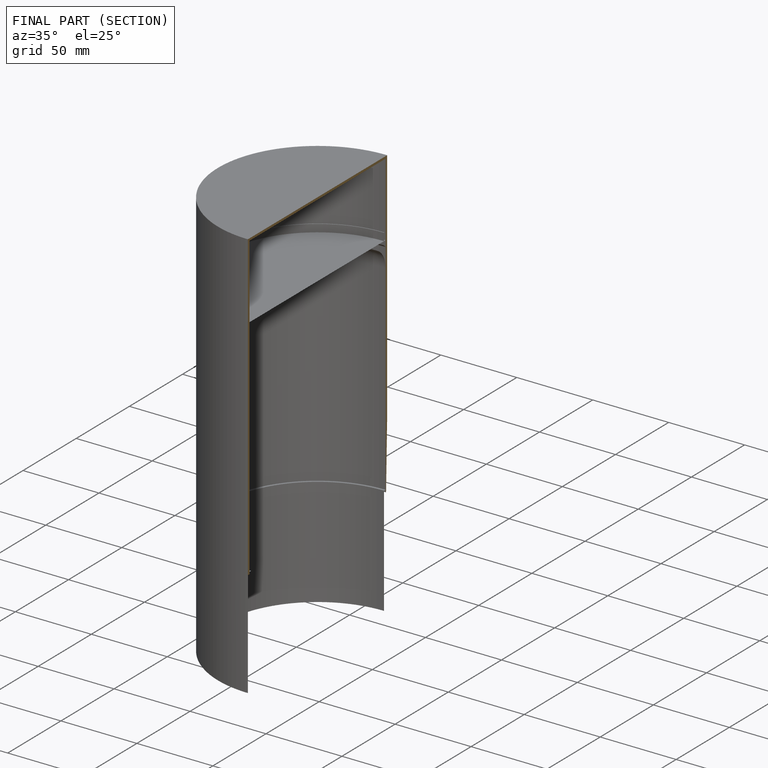
[diagram: finished part — half-section view (interior)]
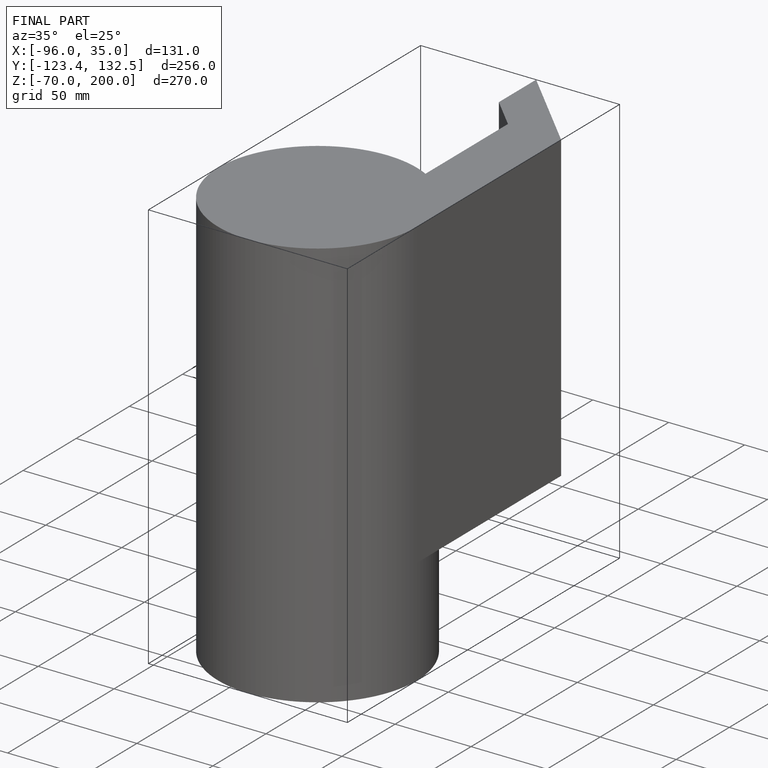
[diagram: finished part — iso view with bounding-box wireframe]
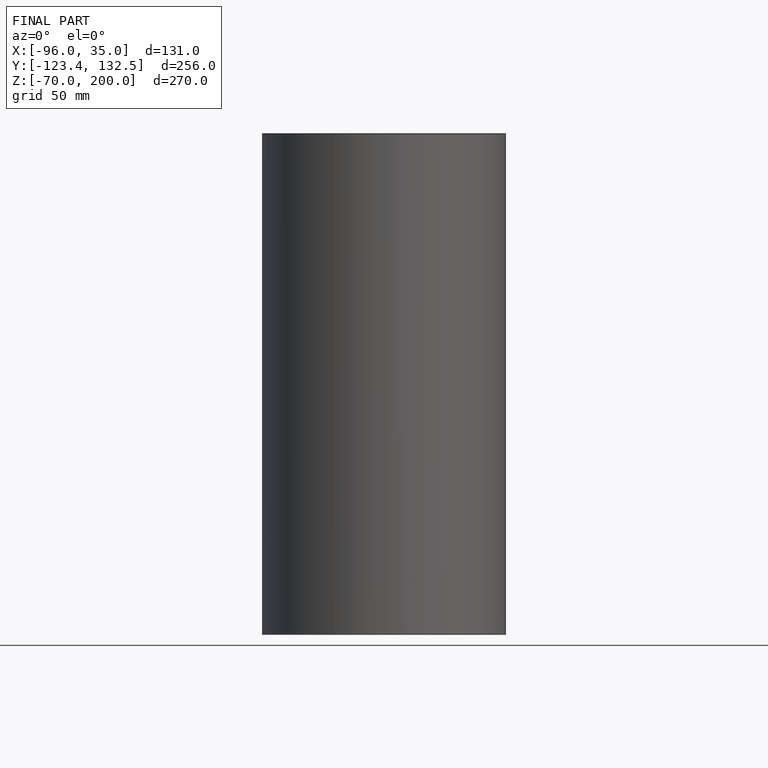
[diagram: finished part — front view with bounding-box wireframe]
